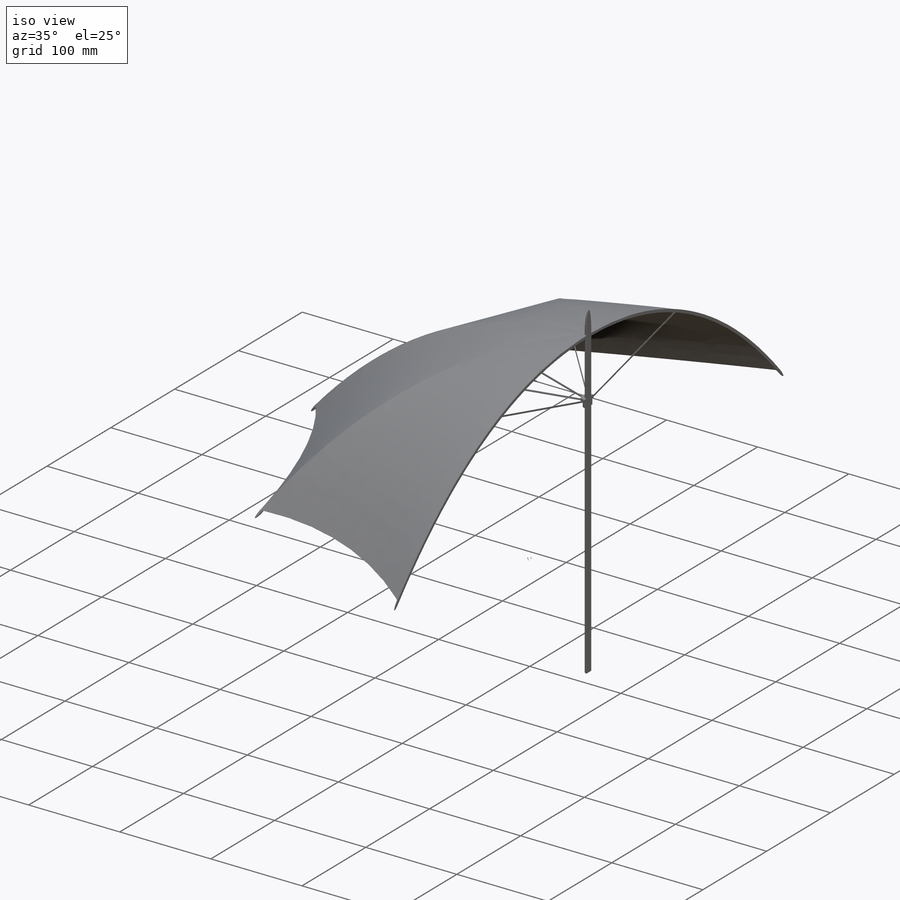
[diagram: iso view]
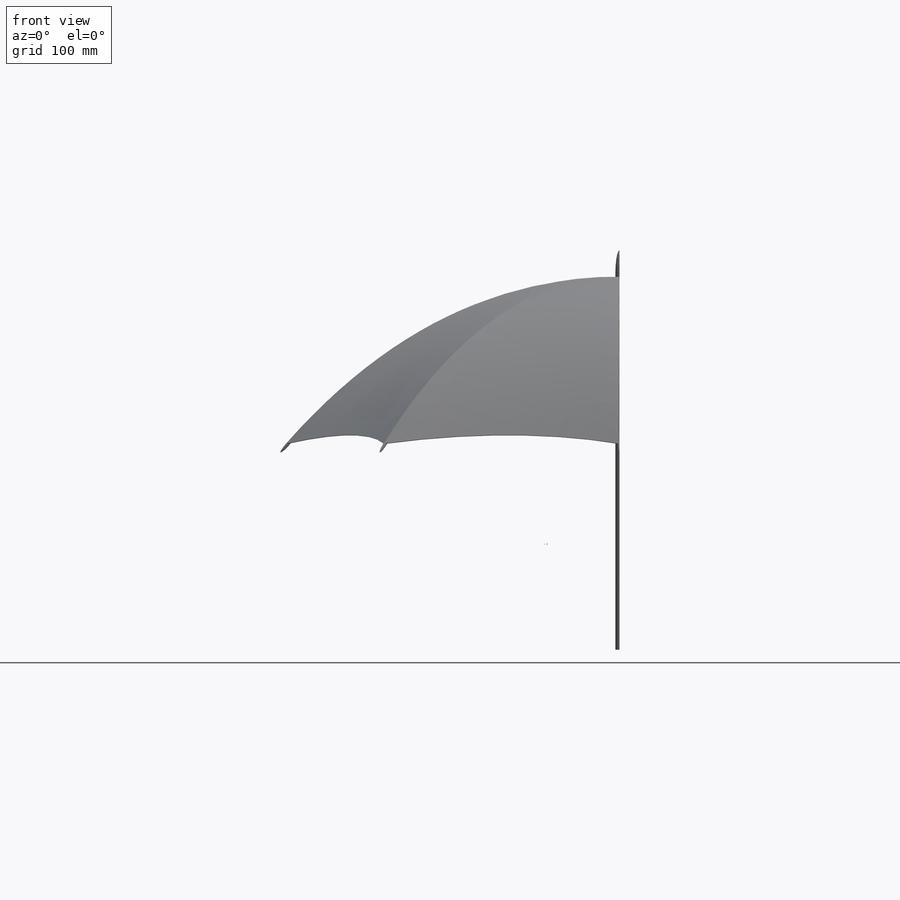
[diagram: front view]
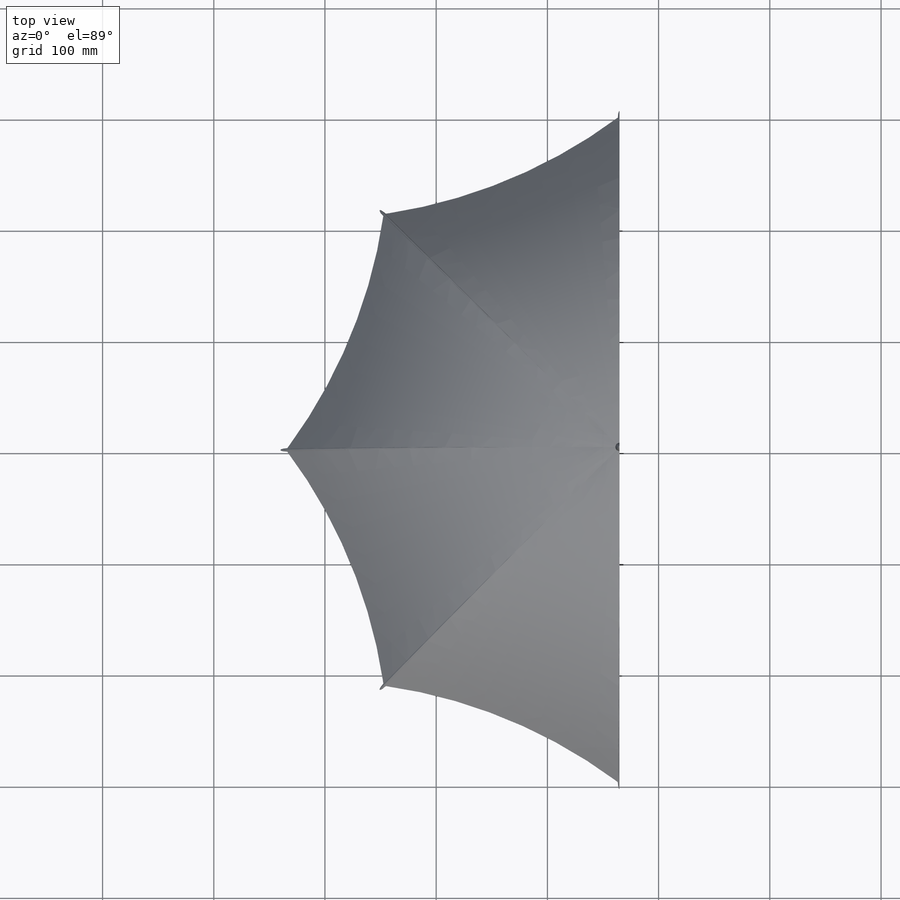
[diagram: top view]
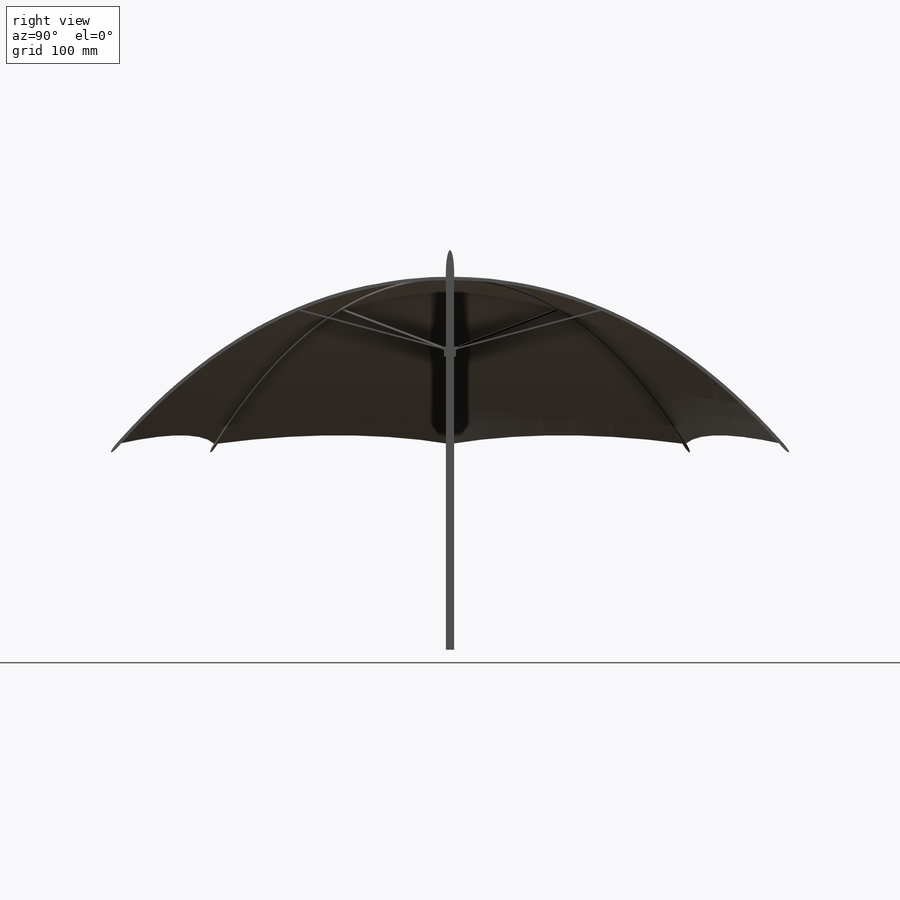
[diagram: right view]
SOLIDWORKS PART (.sldprt)
format: sldprt  version: not decoded by parser v0  size: 1,321,984 bytes
history: native  units: mm
features: sketch x19, plane x8, revolve x8, pattern_circular x4, dome x3, sweep x2, extrude x2, fillet x2, cut_extrude x2, material x1 (+13 scaffold rows collapsed)
feature tree (64):
  scaffold x13  (default folders/planes/origin — collapsed)
  material  "Material <not specified>"
  sketch  "Sketch1"  dims[c1.D1=~158.559451mm c2.D1=45.0deg]
  sketch  "Sketch3"  dims[D1=50.0mm]
  plane  "Plane1"
  plane  "Plane2"
  sketch  "Sketch5"  dims[D1=100.0mm]
  sketch  "Sketch7"  dims[D1=100.0mm]
  sketch  "Sketch8"  dims[c1.D2=120.0mm c1.D1=~158.05288mm c2.D1=22.5deg]
  plane  "Plane3"
  sketch  "Sketch9"
  pattern_circular  "CirPattern3"  Count=8 Angle=360deg
  plane  "Plane4"
  sketch  "Sketch10"  dims[D1=1.0mm]
  sweep  "Sweep1"
  sketch  "Sketch5<3>"
  dome  "Dome1"
  pattern_circular  "CirPattern5"  Count=8 Angle=360deg
  sketch  "Sketch13"  dims[D1=2.5mm]
  extrude  "Boss-Extrude1"  Depth=51mm
  dome  "Dome2"
  sketch  "Sketch14"  dims[c1.D1=20.0mm c1.D2=~9.806887mm c2.D2=60.0deg]
  plane  "Plane5"
  sketch  "Sketch15"  dims[D1=4.5mm]
  sweep  "Sweep2"
  dome  "Dome3"
  fillet  "Fillet1"  Radius=0.3mm
  fillet  "Fillet2"  Radius=0.2mm
  sketch  "Sketch18"  dims[D1=1.0mm D2=1.2mm D3=2.0mm D4=0.6mm D5=0.8mm]
  revolve  "Revolve1"  Angle=360deg
  sketch  "Sketch19"  dims[c1.D1=~19.845878mm c2.D1=75.0deg]
  plane  "Plane6"
  sketch  "Sketch21"
  extrude  "Boss-Extrude2"  [1 undecoded]
  pattern_circular  "CirPattern6"  Count=8 Angle=360deg
  sketch  "Sketch22"  dims[D1=1.2mm D2=1.8mm]
  plane  "Plane7"
  sketch  "Sketch29"  dims[D1=2.45mm]
  pattern_circular  "CirPattern7"  Count=4 Angle=360deg
  sketch  "Sketch30"  dims[c1.D1=1.8mm c2.D1=0.2mm]
  revolve  "Thicken3"  [1 undecoded]
  revolve  "Thicken4"  [1 undecoded]
  revolve  "Thicken5"  [1 undecoded]
  revolve  "Thicken6"  [1 undecoded]
  revolve  "Thicken7"  [1 undecoded]
  revolve  "Thicken8"  [1 undecoded]
  revolve  "Thicken9"  [1 undecoded]
  plane  "Plane8"
  sketch  "Sketch31"
  cut_extrude  "Cut-Extrude1"  Depth=210mm
  sketch  "Sketch33"
  cut_extrude  "Cut-Extrude2"  Depth=80mm
decode coverage: 24 of 42 modeling features carry decoded parameters
note: ~ marks probable driven/reference dimensions
note: 8 parameter values undecoded
summary: no parameter record found for 8 features
note: suppression state not decoded; provenance and decode notes live in map.json
